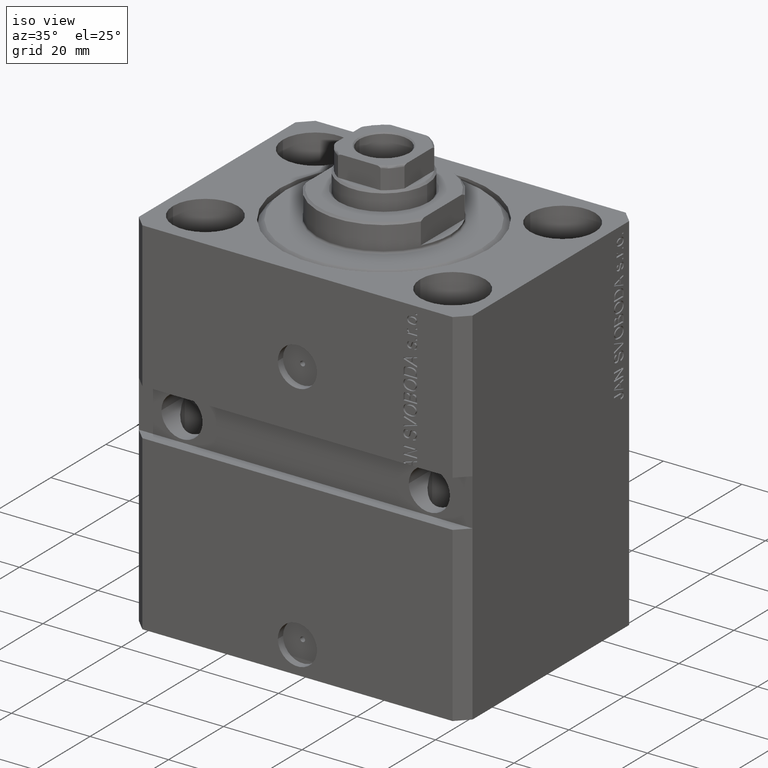
[diagram: clean part render]
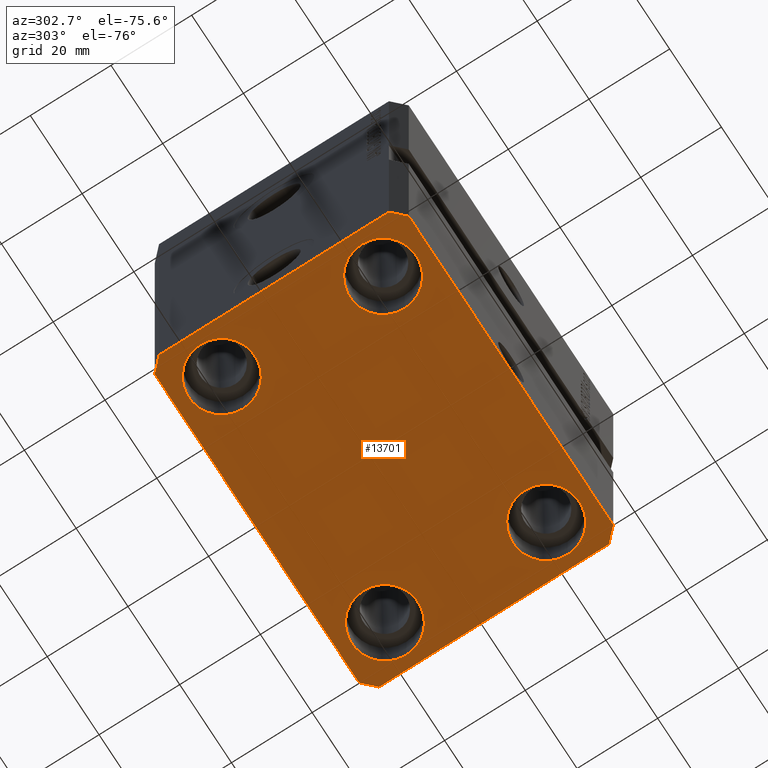
[diagram: tour spotlight — one face highlighted and labeled with its STEP entity id]
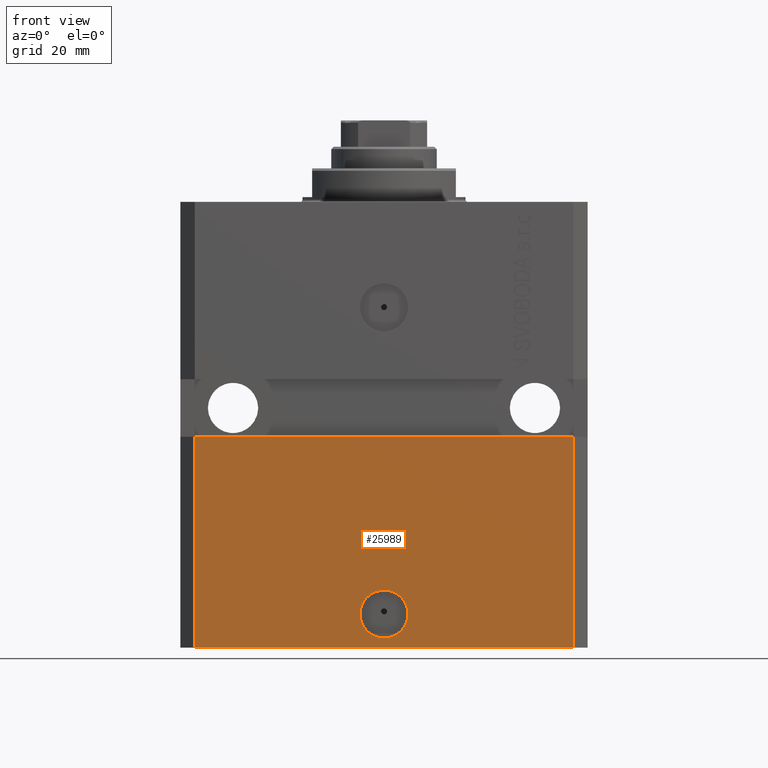
[diagram: tour spotlight — one face highlighted and labeled with its STEP entity id]
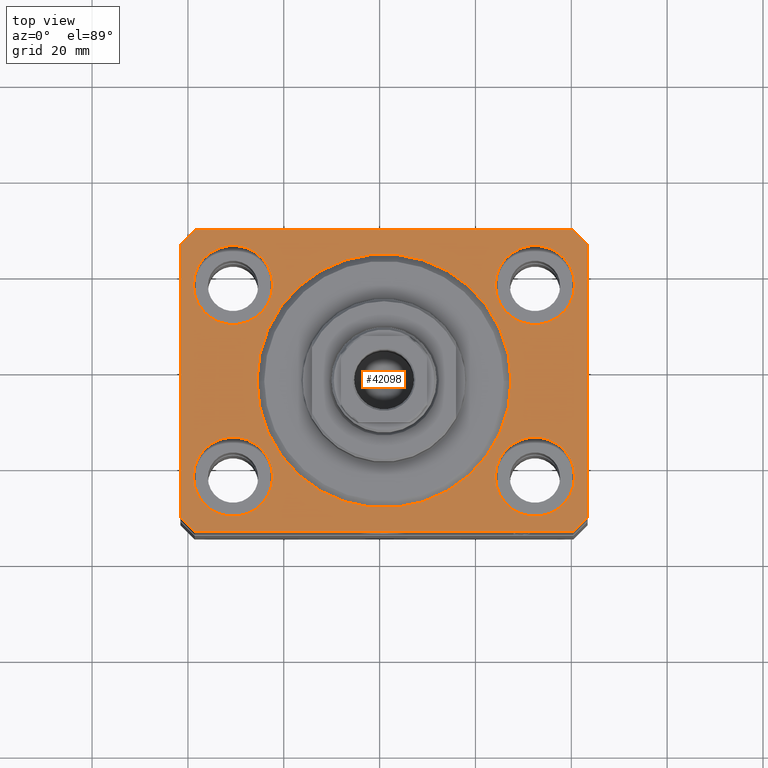
[diagram: tour spotlight — one face highlighted and labeled with its STEP entity id]
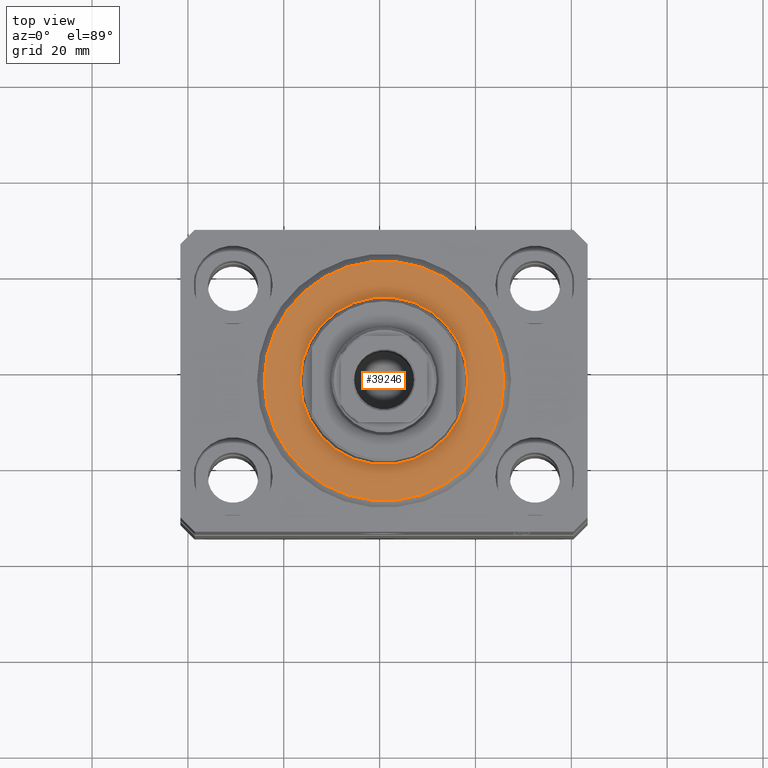
[diagram: tour spotlight — one face highlighted and labeled with its STEP entity id]
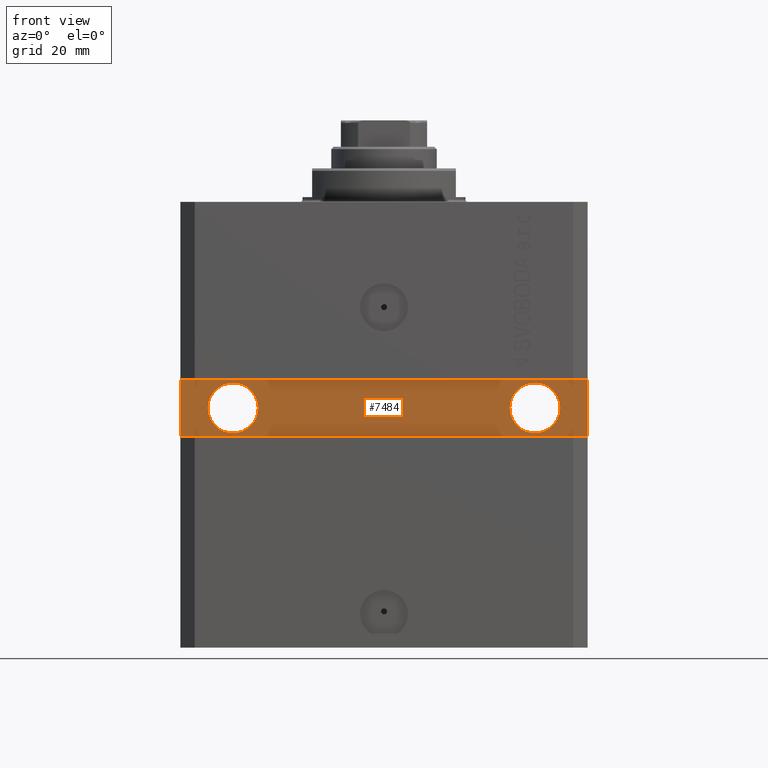
[diagram: tour spotlight — one face highlighted and labeled with its STEP entity id]
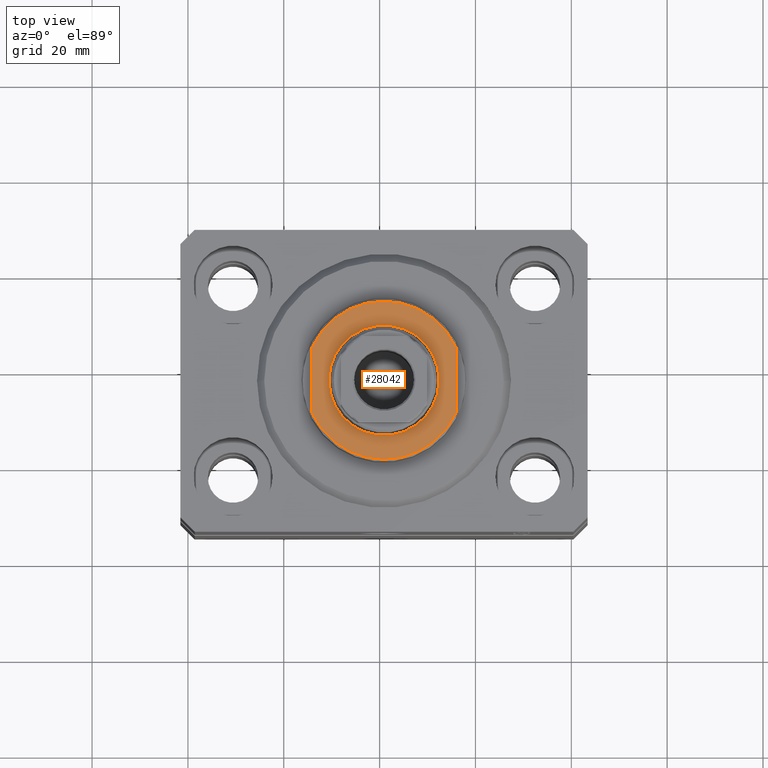
[diagram: tour spotlight — one face highlighted and labeled with its STEP entity id]
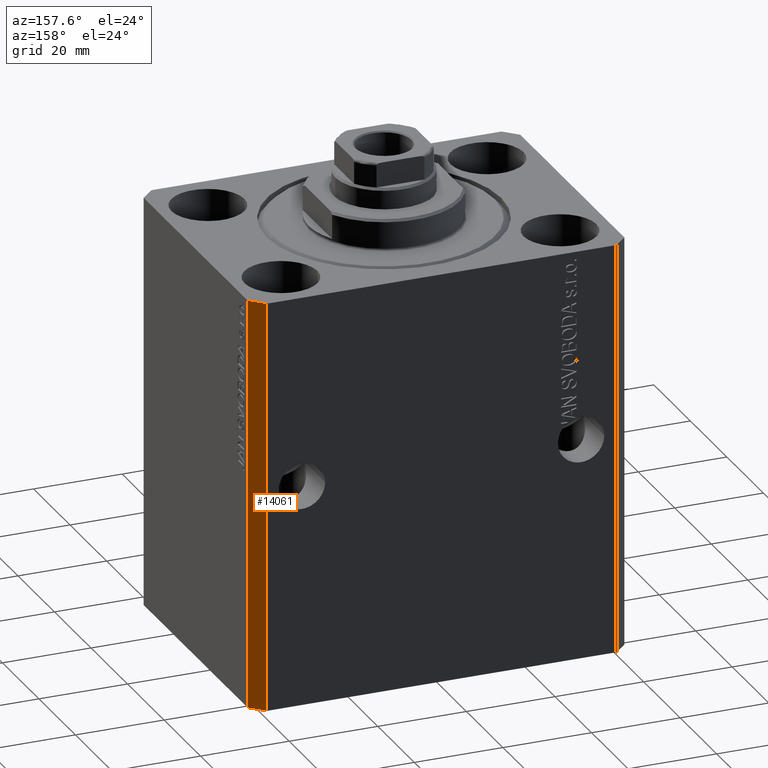
[diagram: tour spotlight — one face highlighted and labeled with its STEP entity id]
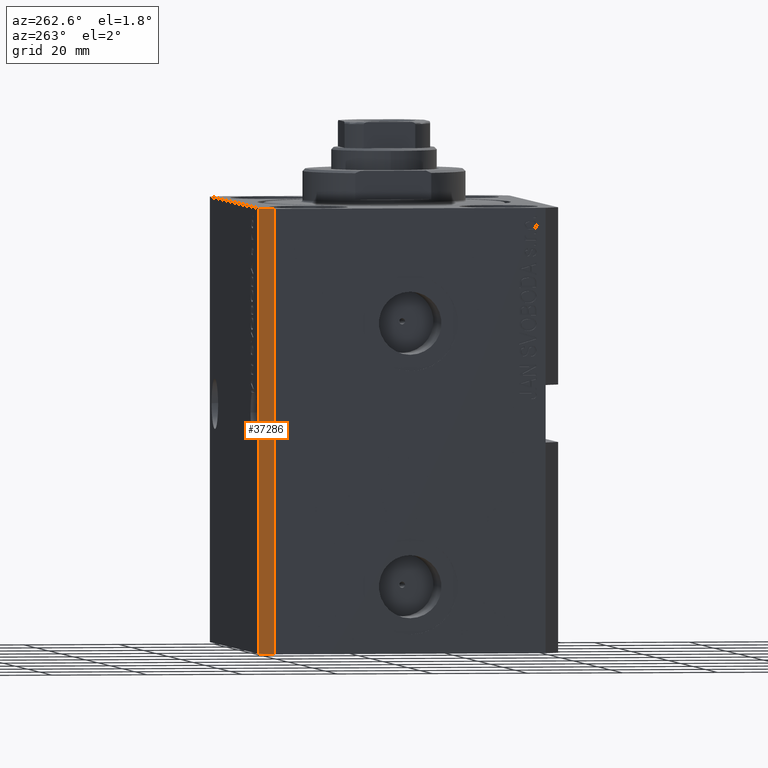
[diagram: tour spotlight — one face highlighted and labeled with its STEP entity id]
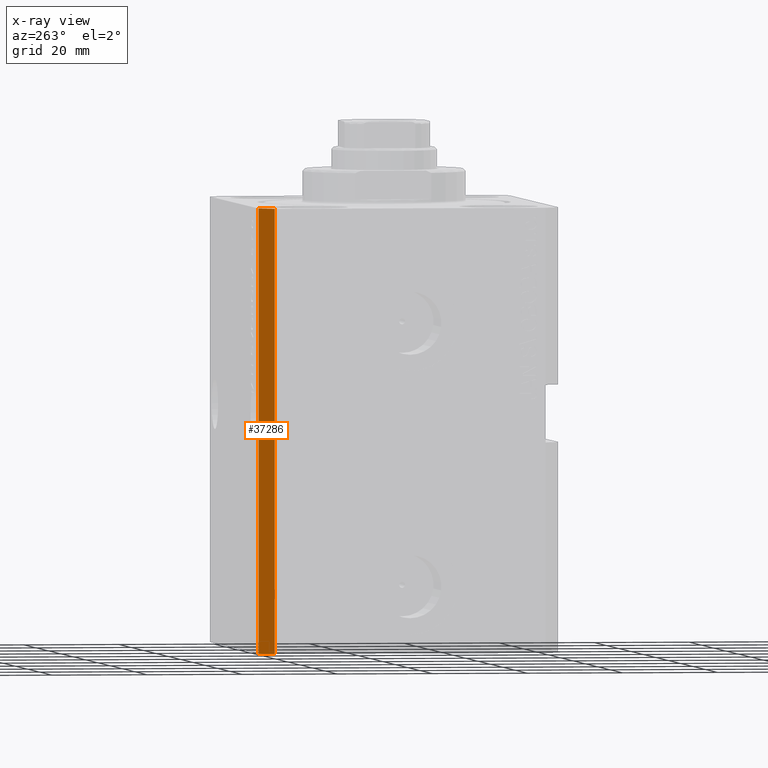
[diagram: x-ray of the same camera — body ghosted, this tour face saturated]
A machine part: a face-by-face anatomy tour. The part has 917 B-rep faces; the first image is the clean iso view, then the 8 largest visible faces are spotlighted one at a time (largest first), each with its STEP entity span.

Face 1 — auxiliary view, entity #13701. In plain terms, the highlighted planar face has unit normal (0, 0, 1).
Definition (entity closure, byte-faithful):
#170 = CARTESIAN_POINT ( 'NONE',  ( 31.50000000000000000, -20.00000000000000000, -93.00000000000000000 ) ) ;
#281 = VECTOR ( 'NONE', #22798, 1000.000000000000000 ) ;
#588 = DIRECTION ( 'NONE',  ( 8.886653596232072440E-15, 1.000000000000000000, 0.000000000000000000 ) ) ;
#613 = CARTESIAN_POINT ( 'NONE',  ( 31.50000000000000000, 20.00000000000001066, -93.00000000000000000 ) ) ;
#1024 = EDGE_CURVE ( 'NONE', #42328, #25160, #41463, .T. ) ;
#1270 = PLANE ( 'NONE',  #35520 ) ;
#1571 = AXIS2_PLACEMENT_3D ( 'NONE', #33351, #37434, #6375 ) ;
#2385 = EDGE_CURVE ( 'NONE', #22477, #44436, #14909, .T. ) ;
#2394 = DIRECTION ( 'NONE',  ( 1.000000000000000000, 0.000000000000000000, 0.000000000000000000 ) ) ;
#2441 = EDGE_CURVE ( 'NONE', #16434, #23155, #9670, .T. ) ;
#2725 = DIRECTION ( 'NONE',  ( -0.000000000000000000, -0.000000000000000000, 1.000000000000000000 ) ) ;
#3092 = CIRCLE ( 'NONE', #40751, 8.250000000000000000 ) ;
#3968 = ORIENTED_EDGE ( 'NONE', *, *, #4119, .T. ) ;
#4104 = CARTESIAN_POINT ( 'NONE',  ( -23.25000000000000000, 20.00000000000000000, -93.00000000000000000 ) ) ;
#4119 = EDGE_CURVE ( 'NONE', #18093, #22908, #38669, .T. ) ;
#4164 = VERTEX_POINT ( 'NONE', #25248 ) ;
#4266 = ORIENTED_EDGE ( 'NONE', *, *, #9977, .F. ) ;
#4426 = VECTOR ( 'NONE', #44765, 1000.000000000000114 ) ;
#5800 = CARTESIAN_POINT ( 'NONE',  ( 31.50000000000000000, 20.00000000000001066, -93.00000000000000000 ) ) ;
#5870 = VECTOR ( 'NONE', #31104, 1000.000000000000000 ) ;
#6375 = DIRECTION ( 'NONE',  ( 1.000000000000000000, 0.000000000000000000, 0.000000000000000000 ) ) ;
#6612 = DIRECTION ( 'NONE',  ( -0.7071067811865471286, -0.7071067811865479058, 0.000000000000000000 ) ) ;
#6866 = AXIS2_PLACEMENT_3D ( 'NONE', #170, #20796, #14236 ) ;
#8290 = FACE_BOUND ( 'NONE', #18082, .T. ) ;
#8544 = CARTESIAN_POINT ( 'NONE',  ( 39.50000000000056843, 31.50000000000000000, -93.00000000000000000 ) ) ;
#8855 = CARTESIAN_POINT ( 'NONE',  ( 39.74999999999999289, -20.00000000000000000, -93.00000000000000000 ) ) ;
#9670 = CIRCLE ( 'NONE', #14768, 8.249999999999992895 ) ;
#9833 = ORIENTED_EDGE ( 'NONE', *, *, #41307, .F. ) ;
#9904 = VECTOR ( 'NONE', #31666, 1000.000000000000000 ) ;
#9977 = EDGE_CURVE ( 'NONE', #22693, #42627, #18054, .T. ) ;
#10028 = LINE ( 'NONE', #37671, #42762 ) ;
#10035 = EDGE_CURVE ( 'NONE', #23155, #16434, #35235, .T. ) ;
#10810 = CARTESIAN_POINT ( 'NONE',  ( -42.50000000000000000, -28.50000000000000000, -93.00000000000000000 ) ) ;
#11607 = EDGE_LOOP ( 'NONE', ( #35541, #29053 ) ) ;
#11638 = DIRECTION ( 'NONE',  ( -0.000000000000000000, -0.000000000000000000, 1.000000000000000000 ) ) ;
#11837 = ORIENTED_EDGE ( 'NONE', *, *, #29132, .T. ) ;
#11870 = DIRECTION ( 'NONE',  ( -0.000000000000000000, -0.000000000000000000, 1.000000000000000000 ) ) ;
#11908 = FACE_BOUND ( 'NONE', #26758, .T. ) ;
#12094 = DIRECTION ( 'NONE',  ( 1.000000000000000000, 0.000000000000000000, 0.000000000000000000 ) ) ;
#12442 = CARTESIAN_POINT ( 'NONE',  ( -42.50000000000000000, 28.50000000000000000, -93.00000000000000000 ) ) ;
#12707 = EDGE_CURVE ( 'NONE', #41314, #41465, #39327, .T. ) ;
#12848 = EDGE_LOOP ( 'NONE', ( #25208, #11837 ) ) ;
#12986 = CARTESIAN_POINT ( 'NONE',  ( -39.50000000000000711, -31.50000000000000000, -93.00000000000000000 ) ) ;
#13701 = ADVANCED_FACE ( 'NONE', ( #8290, #15987, #28907, #11908, #26390 ), #1270, .F. ) ;
#14123 = EDGE_CURVE ( 'NONE', #44436, #21702, #10028, .T. ) ;
#14236 = DIRECTION ( 'NONE',  ( 1.000000000000000000, 0.000000000000000000, 0.000000000000000000 ) ) ;
#14444 = DIRECTION ( 'NONE',  ( 1.000000000000000000, 0.000000000000000000, 0.000000000000000000 ) ) ;
#14614 = CARTESIAN_POINT ( 'NONE',  ( -31.50000000000000000, 20.00000000000000000, -93.00000000000000000 ) ) ;
#14768 = AXIS2_PLACEMENT_3D ( 'NONE', #5800, #19611, #2394 ) ;
#14909 = LINE ( 'NONE', #8544, #281 ) ;
#15324 = DIRECTION ( 'NONE',  ( 1.000000000000000000, 0.000000000000000000, -0.000000000000000000 ) ) ;
#15566 = EDGE_CURVE ( 'NONE', #44733, #22477, #41345, .T. ) ;
#15699 = AXIS2_PLACEMENT_3D ( 'NONE', #613, #25294, #14444 ) ;
#15744 = EDGE_CURVE ( 'NONE', #42627, #41314, #44710, .T. ) ;
#15767 = DIRECTION ( 'NONE',  ( 0.7071067811865483499, 0.7071067811865466846, 0.000000000000000000 ) ) ;
#15987 = FACE_BOUND ( 'NONE', #12848, .T. ) ;
#16434 = VERTEX_POINT ( 'NONE', #27016 ) ;
#16525 = ORIENTED_EDGE ( 'NONE', *, *, #12707, .F. ) ;
#16734 = ORIENTED_EDGE ( 'NONE', *, *, #40797, .F. ) ;
#16772 = DIRECTION ( 'NONE',  ( 1.000000000000000000, 0.000000000000000000, 0.000000000000000000 ) ) ;
#17122 = EDGE_CURVE ( 'NONE', #4164, #44405, #21104, .T. ) ;
#17701 = CARTESIAN_POINT ( 'NONE',  ( 42.50000000000051870, 28.49999999999995381, -93.00000000000000000 ) ) ;
#17807 = CARTESIAN_POINT ( 'NONE',  ( -42.50000000000000000, -28.50000000000000000, -93.00000000000000000 ) ) ;
#17864 = ORIENTED_EDGE ( 'NONE', *, *, #15566, .F. ) ;
#18054 = LINE ( 'NONE', #10810, #9904 ) ;
#18082 = EDGE_LOOP ( 'NONE', ( #40262, #37017 ) ) ;
#18093 = VERTEX_POINT ( 'NONE', #4104 ) ;
#18637 = CARTESIAN_POINT ( 'NONE',  ( 23.25000000000000355, 20.00000000000001066, -93.00000000000000000 ) ) ;
#19611 = DIRECTION ( 'NONE',  ( -0.000000000000000000, -0.000000000000000000, 1.000000000000000000 ) ) ;
#20161 = EDGE_CURVE ( 'NONE', #44405, #4164, #3092, .T. ) ;
#20796 = DIRECTION ( 'NONE',  ( -0.000000000000000000, -0.000000000000000000, 1.000000000000000000 ) ) ;
#21104 = CIRCLE ( 'NONE', #1571, 8.250000000000000000 ) ;
#21702 = VERTEX_POINT ( 'NONE', #38011 ) ;
#21862 = CARTESIAN_POINT ( 'NONE',  ( 42.50000000000000711, -28.50000000000000355, -93.00000000000000000 ) ) ;
#22477 = VERTEX_POINT ( 'NONE', #35565 ) ;
#22693 = VERTEX_POINT ( 'NONE', #17807 ) ;
#22798 = DIRECTION ( 'NONE',  ( -1.000000000000000000, 0.000000000000000000, 0.000000000000000000 ) ) ;
#22908 = VERTEX_POINT ( 'NONE', #44067 ) ;
#23014 = VECTOR ( 'NONE', #588, 1000.000000000000000 ) ;
#23155 = VERTEX_POINT ( 'NONE', #18637 ) ;
#23341 = AXIS2_PLACEMENT_3D ( 'NONE', #40794, #2725, #44195 ) ;
#23999 = DIRECTION ( 'NONE',  ( -0.000000000000000000, -0.000000000000000000, 1.000000000000000000 ) ) ;
#25160 = VERTEX_POINT ( 'NONE', #8855 ) ;
#25208 = ORIENTED_EDGE ( 'NONE', *, *, #1024, .T. ) ;
#25245 = EDGE_CURVE ( 'NONE', #22908, #18093, #34281, .T. ) ;
#25248 = CARTESIAN_POINT ( 'NONE',  ( -39.75000000000000000, -20.00000000000000000, -93.00000000000000000 ) ) ;
#25294 = DIRECTION ( 'NONE',  ( -0.000000000000000000, -0.000000000000000000, 1.000000000000000000 ) ) ;
#26258 = DIRECTION ( 'NONE',  ( 0.000000000000000000, -1.000000000000000000, 0.000000000000000000 ) ) ;
#26390 = FACE_OUTER_BOUND ( 'NONE', #42062, .T. ) ;
#26758 = EDGE_LOOP ( 'NONE', ( #30547, #3968 ) ) ;
#27016 = CARTESIAN_POINT ( 'NONE',  ( 39.74999999999999289, 20.00000000000001066, -93.00000000000000000 ) ) ;
#27857 = CIRCLE ( 'NONE', #6866, 8.249999999999992895 ) ;
#28666 = CARTESIAN_POINT ( 'NONE',  ( 42.50000000000000711, -28.50000000000000355, -93.00000000000000000 ) ) ;
#28907 = FACE_BOUND ( 'NONE', #11607, .T. ) ;
#29053 = ORIENTED_EDGE ( 'NONE', *, *, #2441, .T. ) ;
#29132 = EDGE_CURVE ( 'NONE', #25160, #42328, #27857, .T. ) ;
#29504 = ORIENTED_EDGE ( 'NONE', *, *, #2385, .F. ) ;
#29799 = DIRECTION ( 'NONE',  ( 0.000000000000000000, 0.000000000000000000, 1.000000000000000000 ) ) ;
#30547 = ORIENTED_EDGE ( 'NONE', *, *, #25245, .T. ) ;
#30711 = CARTESIAN_POINT ( 'NONE',  ( 42.50000000000051870, 28.49999999999995381, -93.00000000000000000 ) ) ;
#31104 = DIRECTION ( 'NONE',  ( 1.000000000000000000, 0.000000000000000000, 0.000000000000000000 ) ) ;
#31406 = CARTESIAN_POINT ( 'NONE',  ( 39.50000000000000711, -31.50000000000000000, -93.00000000000000000 ) ) ;
#31666 = DIRECTION ( 'NONE',  ( 0.7071067811865471286, -0.7071067811865479058, 0.000000000000000000 ) ) ;
#31834 = DIRECTION ( 'NONE',  ( 1.000000000000000000, 0.000000000000000000, 0.000000000000000000 ) ) ;
#32043 = CARTESIAN_POINT ( 'NONE',  ( -31.50000000000000000, -20.00000000000000000, -93.00000000000000000 ) ) ;
#32766 = CARTESIAN_POINT ( 'NONE',  ( 0.000000000000000000, 0.000000000000000000, -93.00000000000000000 ) ) ;
#32876 = AXIS2_PLACEMENT_3D ( 'NONE', #14614, #11870, #31834 ) ;
#33202 = CARTESIAN_POINT ( 'NONE',  ( 39.50000000000000711, -31.50000000000000000, -93.00000000000000000 ) ) ;
#33351 = CARTESIAN_POINT ( 'NONE',  ( -31.50000000000000000, -20.00000000000000000, -93.00000000000000000 ) ) ;
#34025 = VECTOR ( 'NONE', #15767, 1000.000000000000000 ) ;
#34281 = CIRCLE ( 'NONE', #38627, 8.250000000000000000 ) ;
#34435 = CARTESIAN_POINT ( 'NONE',  ( -31.50000000000000000, 20.00000000000000000, -93.00000000000000000 ) ) ;
#34553 = CARTESIAN_POINT ( 'NONE',  ( -39.50000000000000711, 31.50000000000000000, -93.00000000000000000 ) ) ;
#35029 = LINE ( 'NONE', #28666, #23014 ) ;
#35157 = ORIENTED_EDGE ( 'NONE', *, *, #14123, .F. ) ;
#35235 = CIRCLE ( 'NONE', #15699, 8.249999999999992895 ) ;
#35249 = ORIENTED_EDGE ( 'NONE', *, *, #15744, .F. ) ;
#35520 = AXIS2_PLACEMENT_3D ( 'NONE', #32766, #29799, #15324 ) ;
#35541 = ORIENTED_EDGE ( 'NONE', *, *, #10035, .T. ) ;
#35565 = CARTESIAN_POINT ( 'NONE',  ( 39.50000000000056843, 31.50000000000000000, -93.00000000000000000 ) ) ;
#37017 = ORIENTED_EDGE ( 'NONE', *, *, #20161, .T. ) ;
#37434 = DIRECTION ( 'NONE',  ( -0.000000000000000000, -0.000000000000000000, 1.000000000000000000 ) ) ;
#37517 = VECTOR ( 'NONE', #26258, 1000.000000000000000 ) ;
#37671 = CARTESIAN_POINT ( 'NONE',  ( -39.50000000000000711, 31.50000000000000000, -93.00000000000000000 ) ) ;
#38011 = CARTESIAN_POINT ( 'NONE',  ( -42.50000000000000000, 28.50000000000000000, -93.00000000000000000 ) ) ;
#38627 = AXIS2_PLACEMENT_3D ( 'NONE', #34435, #23999, #16772 ) ;
#38669 = CIRCLE ( 'NONE', #32876, 8.250000000000000000 ) ;
#39327 = LINE ( 'NONE', #33202, #34025 ) ;
#40262 = ORIENTED_EDGE ( 'NONE', *, *, #17122, .T. ) ;
#40751 = AXIS2_PLACEMENT_3D ( 'NONE', #32043, #11638, #12094 ) ;
#40794 = CARTESIAN_POINT ( 'NONE',  ( 31.50000000000000000, -20.00000000000000000, -93.00000000000000000 ) ) ;
#40797 = EDGE_CURVE ( 'NONE', #21702, #22693, #43497, .T. ) ;
#41208 = CARTESIAN_POINT ( 'NONE',  ( 23.25000000000000355, -20.00000000000000000, -93.00000000000000000 ) ) ;
#41307 = EDGE_CURVE ( 'NONE', #41465, #44733, #35029, .T. ) ;
#41314 = VERTEX_POINT ( 'NONE', #31406 ) ;
#41345 = LINE ( 'NONE', #30711, #4426 ) ;
#41463 = CIRCLE ( 'NONE', #23341, 8.249999999999992895 ) ;
#41465 = VERTEX_POINT ( 'NONE', #21862 ) ;
#41775 = CARTESIAN_POINT ( 'NONE',  ( -39.50000000000000711, -31.50000000000000000, -93.00000000000000000 ) ) ;
#42062 = EDGE_LOOP ( 'NONE', ( #29504, #17864, #9833, #16525, #35249, #4266, #16734, #35157 ) ) ;
#42328 = VERTEX_POINT ( 'NONE', #41208 ) ;
#42627 = VERTEX_POINT ( 'NONE', #41775 ) ;
#42762 = VECTOR ( 'NONE', #6612, 1000.000000000000000 ) ;
#43497 = LINE ( 'NONE', #12442, #37517 ) ;
#44067 = CARTESIAN_POINT ( 'NONE',  ( -39.75000000000000000, 20.00000000000000000, -93.00000000000000000 ) ) ;
#44195 = DIRECTION ( 'NONE',  ( 1.000000000000000000, 0.000000000000000000, 0.000000000000000000 ) ) ;
#44405 = VERTEX_POINT ( 'NONE', #44527 ) ;
#44436 = VERTEX_POINT ( 'NONE', #34553 ) ;
#44527 = CARTESIAN_POINT ( 'NONE',  ( -23.25000000000000000, -20.00000000000000000, -93.00000000000000000 ) ) ;
#44710 = LINE ( 'NONE', #12986, #5870 ) ;
#44733 = VERTEX_POINT ( 'NONE', #17701 ) ;
#44765 = DIRECTION ( 'NONE',  ( -0.7071067811865356934, 0.7071067811865594521, 0.000000000000000000 ) ) ;

Face 2 — front view, entity #25989. In plain terms, the highlighted planar face has unit normal (0, -1, 0).
Definition (entity closure, byte-faithful):
#949 = CARTESIAN_POINT ( 'NONE',  ( -5.000000000000006217, -31.50000000000000000, -86.00000000000000000 ) ) ;
#2030 = ORIENTED_EDGE ( 'NONE', *, *, #8521, .F. ) ;
#2099 = VERTEX_POINT ( 'NONE', #949 ) ;
#2576 = VECTOR ( 'NONE', #37048, 1000.000000000000000 ) ;
#3597 = ORIENTED_EDGE ( 'NONE', *, *, #12847, .F. ) ;
#3644 = CARTESIAN_POINT ( 'NONE',  ( 39.50000000000001421, -31.49999999999999289, -48.99999999999999289 ) ) ;
#5870 = VECTOR ( 'NONE', #31104, 1000.000000000000000 ) ;
#6225 = CARTESIAN_POINT ( 'NONE',  ( 39.50000000000000711, -31.50000000000000000, -93.00000000000000000 ) ) ;
#6755 = CARTESIAN_POINT ( 'NONE',  ( -39.50000000000000711, -31.50000000000000000, -93.00000000000000000 ) ) ;
#6953 = EDGE_CURVE ( 'NONE', #41314, #43616, #36837, .T. ) ;
#6983 = DIRECTION ( 'NONE',  ( 0.000000000000000000, -0.000000000000000000, -1.000000000000000000 ) ) ;
#7168 = ORIENTED_EDGE ( 'NONE', *, *, #15744, .T. ) ;
#7684 = CARTESIAN_POINT ( 'NONE',  ( 0.000000000000000000, -31.50000000000000000, -86.00000000000000000 ) ) ;
#7766 = ORIENTED_EDGE ( 'NONE', *, *, #26797, .F. ) ;
#8521 = EDGE_CURVE ( 'NONE', #42627, #30051, #24461, .T. ) ;
#9673 = CARTESIAN_POINT ( 'NONE',  ( 0.000000000000000000, -31.50000000000000000, -86.00000000000000000 ) ) ;
#10447 = EDGE_CURVE ( 'NONE', #2099, #13059, #15607, .T. ) ;
#10572 = DIRECTION ( 'NONE',  ( 1.000000000000000000, 0.000000000000000000, 0.000000000000000000 ) ) ;
#10990 = EDGE_LOOP ( 'NONE', ( #7766, #28548 ) ) ;
#11406 = CARTESIAN_POINT ( 'NONE',  ( 5.000000000000006217, -31.50000000000000000, -86.00000000000000000 ) ) ;
#11900 = CARTESIAN_POINT ( 'NONE',  ( -42.50000000000000000, -31.50000000000000711, -48.99999999999999289 ) ) ;
#12847 = EDGE_CURVE ( 'NONE', #30051, #43616, #42949, .T. ) ;
#12986 = CARTESIAN_POINT ( 'NONE',  ( -39.50000000000000711, -31.50000000000000000, -93.00000000000000000 ) ) ;
#13059 = VERTEX_POINT ( 'NONE', #11406 ) ;
#14723 = DIRECTION ( 'NONE',  ( 1.000000000000000000, 0.000000000000000000, 0.000000000000000000 ) ) ;
#15584 = CARTESIAN_POINT ( 'NONE',  ( -39.50000000000000000, -31.50000000000000711, -48.99999999999999289 ) ) ;
#15607 = CIRCLE ( 'NONE', #35128, 5.000000000000006217 ) ;
#15744 = EDGE_CURVE ( 'NONE', #42627, #41314, #44710, .T. ) ;
#19678 = ORIENTED_EDGE ( 'NONE', *, *, #6953, .T. ) ;
#20012 = EDGE_LOOP ( 'NONE', ( #3597, #2030, #7168, #19678 ) ) ;
#20571 = DIRECTION ( 'NONE',  ( 0.000000000000000000, -1.000000000000000000, 0.000000000000000000 ) ) ;
#21272 = DIRECTION ( 'NONE',  ( 0.000000000000000000, 0.000000000000000000, 1.000000000000000000 ) ) ;
#24461 = LINE ( 'NONE', #38295, #33734 ) ;
#25989 = ADVANCED_FACE ( 'NONE', ( #34856, #34642 ), #37806, .T. ) ;
#26797 = EDGE_CURVE ( 'NONE', #13059, #2099, #38656, .T. ) ;
#27050 = AXIS2_PLACEMENT_3D ( 'NONE', #6755, #20571, #6983 ) ;
#28548 = ORIENTED_EDGE ( 'NONE', *, *, #10447, .F. ) ;
#30051 = VERTEX_POINT ( 'NONE', #15584 ) ;
#31104 = DIRECTION ( 'NONE',  ( 1.000000000000000000, 0.000000000000000000, 0.000000000000000000 ) ) ;
#31406 = CARTESIAN_POINT ( 'NONE',  ( 39.50000000000000711, -31.50000000000000000, -93.00000000000000000 ) ) ;
#31438 = AXIS2_PLACEMENT_3D ( 'NONE', #9673, #40947, #10572 ) ;
#32608 = DIRECTION ( 'NONE',  ( 1.176083712526788232E-16, -1.000000000000000000, 0.000000000000000000 ) ) ;
#33734 = VECTOR ( 'NONE', #21272, 1000.000000000000000 ) ;
#34642 = FACE_OUTER_BOUND ( 'NONE', #20012, .T. ) ;
#34856 = FACE_BOUND ( 'NONE', #10990, .T. ) ;
#35128 = AXIS2_PLACEMENT_3D ( 'NONE', #7684, #32608, #14723 ) ;
#35493 = VECTOR ( 'NONE', #36369, 1000.000000000000000 ) ;
#36369 = DIRECTION ( 'NONE',  ( 1.000000000000000000, 1.632680918566406300E-16, 0.000000000000000000 ) ) ;
#36837 = LINE ( 'NONE', #6225, #2576 ) ;
#37048 = DIRECTION ( 'NONE',  ( 0.000000000000000000, 0.000000000000000000, 1.000000000000000000 ) ) ;
#37806 = PLANE ( 'NONE',  #27050 ) ;
#38295 = CARTESIAN_POINT ( 'NONE',  ( -39.50000000000000711, -31.50000000000000000, -93.00000000000000000 ) ) ;
#38656 = CIRCLE ( 'NONE', #31438, 5.000000000000006217 ) ;
#40947 = DIRECTION ( 'NONE',  ( 1.176083712526788232E-16, -1.000000000000000000, 0.000000000000000000 ) ) ;
#41314 = VERTEX_POINT ( 'NONE', #31406 ) ;
#41775 = CARTESIAN_POINT ( 'NONE',  ( -39.50000000000000711, -31.50000000000000000, -93.00000000000000000 ) ) ;
#42627 = VERTEX_POINT ( 'NONE', #41775 ) ;
#42949 = LINE ( 'NONE', #11900, #35493 ) ;
#43616 = VERTEX_POINT ( 'NONE', #3644 ) ;
#44710 = LINE ( 'NONE', #12986, #5870 ) ;

Face 3 — top view, entity #42098. In plain terms, the highlighted planar face has unit normal (0, 0, 1).
Definition (entity closure, byte-faithful):
#46 = DIRECTION ( 'NONE',  ( 0.000000000000000000, 0.000000000000000000, 1.000000000000000000 ) ) ;
#151 = CIRCLE ( 'NONE', #25471, 26.50000000000000355 ) ;
#169 = ORIENTED_EDGE ( 'NONE', *, *, #21637, .F. ) ;
#179 = VERTEX_POINT ( 'NONE', #10967 ) ;
#417 = CARTESIAN_POINT ( 'NONE',  ( 39.50000000000000711, -31.50000000000000000, 0.000000000000000000 ) ) ;
#1272 = DIRECTION ( 'NONE',  ( -0.7071067811865356934, 0.7071067811865594521, 0.000000000000000000 ) ) ;
#1730 = VECTOR ( 'NONE', #29916, 1000.000000000000000 ) ;
#2009 = DIRECTION ( 'NONE',  ( 0.000000000000000000, 0.000000000000000000, 1.000000000000000000 ) ) ;
#2179 = ORIENTED_EDGE ( 'NONE', *, *, #25215, .T. ) ;
#2975 = ORIENTED_EDGE ( 'NONE', *, *, #41399, .F. ) ;
#3259 = CIRCLE ( 'NONE', #29343, 8.250000000000000000 ) ;
#3329 = CARTESIAN_POINT ( 'NONE',  ( 42.50000000000000711, -28.50000000000000355, 0.000000000000000000 ) ) ;
#3709 = AXIS2_PLACEMENT_3D ( 'NONE', #13664, #46, #26787 ) ;
#3954 = CARTESIAN_POINT ( 'NONE',  ( -31.50000000000000000, -20.00000000000000000, 0.000000000000000000 ) ) ;
#4088 = VERTEX_POINT ( 'NONE', #16899 ) ;
#4518 = AXIS2_PLACEMENT_3D ( 'NONE', #3954, #14615, #29087 ) ;
#4641 = DIRECTION ( 'NONE',  ( 1.000000000000000000, 0.000000000000000000, 0.000000000000000000 ) ) ;
#4645 = VERTEX_POINT ( 'NONE', #6791 ) ;
#4670 = CARTESIAN_POINT ( 'NONE',  ( 42.50000000000051870, 28.49999999999995381, 0.000000000000000000 ) ) ;
#5038 = VERTEX_POINT ( 'NONE', #15956 ) ;
#5068 = CARTESIAN_POINT ( 'NONE',  ( -39.75000000000000000, -20.00000000000000000, 0.000000000000000000 ) ) ;
#5244 = CARTESIAN_POINT ( 'NONE',  ( -23.25000000000000000, -20.00000000000000000, 0.000000000000000000 ) ) ;
#5258 = VECTOR ( 'NONE', #37034, 1000.000000000000000 ) ;
#5547 = CIRCLE ( 'NONE', #12093, 8.250000000000000000 ) ;
#5891 = LINE ( 'NONE', #36062, #1730 ) ;
#6101 = EDGE_CURVE ( 'NONE', #11454, #15654, #3259, .T. ) ;
#6130 = CARTESIAN_POINT ( 'NONE',  ( 39.50000000000056843, 31.50000000000000000, 0.000000000000000000 ) ) ;
#6791 = CARTESIAN_POINT ( 'NONE',  ( 39.74999999999999289, 20.00000000000001066, 0.000000000000000000 ) ) ;
#6875 = LINE ( 'NONE', #10286, #5258 ) ;
#7420 = VECTOR ( 'NONE', #14479, 1000.000000000000000 ) ;
#7537 = CARTESIAN_POINT ( 'NONE',  ( 39.74999999999999289, -20.00000000000000000, 0.000000000000000000 ) ) ;
#7667 = DIRECTION ( 'NONE',  ( 0.7071067811865471286, -0.7071067811865479058, 0.000000000000000000 ) ) ;
#7788 = ORIENTED_EDGE ( 'NONE', *, *, #6101, .F. ) ;
#8156 = EDGE_LOOP ( 'NONE', ( #2975, #24867 ) ) ;
#9160 = DIRECTION ( 'NONE',  ( 0.000000000000000000, 0.000000000000000000, 1.000000000000000000 ) ) ;
#9384 = ORIENTED_EDGE ( 'NONE', *, *, #12653, .F. ) ;
#9551 = CARTESIAN_POINT ( 'NONE',  ( -39.50000000000000711, -31.50000000000000000, 0.000000000000000000 ) ) ;
#9940 = VERTEX_POINT ( 'NONE', #3329 ) ;
#10173 = CARTESIAN_POINT ( 'NONE',  ( 23.25000000000000355, -20.00000000000000000, 0.000000000000000000 ) ) ;
#10227 = VERTEX_POINT ( 'NONE', #32889 ) ;
#10241 = LINE ( 'NONE', #30645, #35703 ) ;
#10286 = CARTESIAN_POINT ( 'NONE',  ( 39.50000000000056843, 31.50000000000000000, 0.000000000000000000 ) ) ;
#10291 = DIRECTION ( 'NONE',  ( 0.000000000000000000, 0.000000000000000000, 1.000000000000000000 ) ) ;
#10680 = CARTESIAN_POINT ( 'NONE',  ( -23.25000000000000000, 20.00000000000000000, 0.000000000000000000 ) ) ;
#10737 = CARTESIAN_POINT ( 'NONE',  ( -31.50000000000000000, -20.00000000000000000, 0.000000000000000000 ) ) ;
#10967 = CARTESIAN_POINT ( 'NONE',  ( 42.50000000000051870, 28.49999999999995381, 0.000000000000000000 ) ) ;
#11109 = EDGE_LOOP ( 'NONE', ( #27700, #12965, #22022, #20180, #27704, #33568, #2179, #39260 ) ) ;
#11176 = DIRECTION ( 'NONE',  ( 1.000000000000000000, 0.000000000000000000, 0.000000000000000000 ) ) ;
#11454 = VERTEX_POINT ( 'NONE', #5244 ) ;
#11558 = ORIENTED_EDGE ( 'NONE', *, *, #35432, .F. ) ;
#11674 = CIRCLE ( 'NONE', #3709, 26.50000000000000355 ) ;
#11689 = LINE ( 'NONE', #4670, #43509 ) ;
#11881 = CARTESIAN_POINT ( 'NONE',  ( 31.50000000000000000, -20.00000000000000000, 0.000000000000000000 ) ) ;
#11974 = CARTESIAN_POINT ( 'NONE',  ( 31.50000000000000000, 20.00000000000001066, 0.000000000000000000 ) ) ;
#12093 = AXIS2_PLACEMENT_3D ( 'NONE', #20772, #38456, #34609 ) ;
#12128 = CARTESIAN_POINT ( 'NONE',  ( 31.50000000000000000, 20.00000000000001066, 0.000000000000000000 ) ) ;
#12321 = CIRCLE ( 'NONE', #20275, 8.249999999999992895 ) ;
#12653 = EDGE_CURVE ( 'NONE', #42612, #23596, #12321, .T. ) ;
#12732 = DIRECTION ( 'NONE',  ( 1.000000000000000000, 0.000000000000000000, 0.000000000000000000 ) ) ;
#12965 = ORIENTED_EDGE ( 'NONE', *, *, #24213, .T. ) ;
#13624 = LINE ( 'NONE', #27423, #35997 ) ;
#13664 = CARTESIAN_POINT ( 'NONE',  ( 0.000000000000000000, 0.000000000000000000, 0.000000000000000000 ) ) ;
#14195 = AXIS2_PLACEMENT_3D ( 'NONE', #11881, #9160, #4641 ) ;
#14351 = VERTEX_POINT ( 'NONE', #24648 ) ;
#14479 = DIRECTION ( 'NONE',  ( 0.7071067811865483499, 0.7071067811865466846, 0.000000000000000000 ) ) ;
#14517 = CARTESIAN_POINT ( 'NONE',  ( 0.000000000000000000, 0.000000000000000000, 0.000000000000000000 ) ) ;
#14615 = DIRECTION ( 'NONE',  ( 0.000000000000000000, 0.000000000000000000, 1.000000000000000000 ) ) ;
#14670 = EDGE_CURVE ( 'NONE', #179, #34817, #11689, .T. ) ;
#15021 = VECTOR ( 'NONE', #7667, 1000.000000000000000 ) ;
#15654 = VERTEX_POINT ( 'NONE', #5068 ) ;
#15775 = EDGE_CURVE ( 'NONE', #36183, #10227, #11674, .T. ) ;
#15825 = DIRECTION ( 'NONE',  ( 0.000000000000000000, 0.000000000000000000, 1.000000000000000000 ) ) ;
#15835 = DIRECTION ( 'NONE',  ( 1.000000000000000000, 0.000000000000000000, 0.000000000000000000 ) ) ;
#15956 = CARTESIAN_POINT ( 'NONE',  ( -42.50000000000000000, -28.50000000000000000, 0.000000000000000000 ) ) ;
#16899 = CARTESIAN_POINT ( 'NONE',  ( -39.50000000000000711, 31.50000000000000000, 0.000000000000000000 ) ) ;
#17110 = VECTOR ( 'NONE', #12732, 1000.000000000000000 ) ;
#18129 = FACE_BOUND ( 'NONE', #28653, .T. ) ;
#19003 = AXIS2_PLACEMENT_3D ( 'NONE', #11974, #39843, #15835 ) ;
#19355 = EDGE_CURVE ( 'NONE', #14351, #4645, #21166, .T. ) ;
#19391 = CIRCLE ( 'NONE', #28087, 8.249999999999992895 ) ;
#19479 = EDGE_LOOP ( 'NONE', ( #21305, #31680 ) ) ;
#20180 = ORIENTED_EDGE ( 'NONE', *, *, #43787, .T. ) ;
#20275 = AXIS2_PLACEMENT_3D ( 'NONE', #37985, #28448, #24827 ) ;
#20772 = CARTESIAN_POINT ( 'NONE',  ( -31.50000000000000000, 20.00000000000000000, 0.000000000000000000 ) ) ;
#21166 = CIRCLE ( 'NONE', #19003, 8.249999999999992895 ) ;
#21305 = ORIENTED_EDGE ( 'NONE', *, *, #38323, .F. ) ;
#21637 = EDGE_CURVE ( 'NONE', #10227, #36183, #151, .T. ) ;
#21968 = FACE_BOUND ( 'NONE', #37744, .T. ) ;
#22022 = ORIENTED_EDGE ( 'NONE', *, *, #36023, .T. ) ;
#22170 = EDGE_CURVE ( 'NONE', #15654, #11454, #38521, .T. ) ;
#22193 = PLANE ( 'NONE',  #28832 ) ;
#22881 = LINE ( 'NONE', #36711, #15021 ) ;
#22965 = EDGE_CURVE ( 'NONE', #34817, #4088, #6875, .T. ) ;
#23596 = VERTEX_POINT ( 'NONE', #10173 ) ;
#23727 = EDGE_CURVE ( 'NONE', #34224, #9940, #34650, .T. ) ;
#23849 = EDGE_CURVE ( 'NONE', #26031, #43606, #29875, .T. ) ;
#24021 = DIRECTION ( 'NONE',  ( 0.000000000000000000, -1.000000000000000000, 0.000000000000000000 ) ) ;
#24213 = EDGE_CURVE ( 'NONE', #4088, #35980, #10241, .T. ) ;
#24648 = CARTESIAN_POINT ( 'NONE',  ( 23.25000000000000355, 20.00000000000001066, 0.000000000000000000 ) ) ;
#24827 = DIRECTION ( 'NONE',  ( 1.000000000000000000, 0.000000000000000000, 0.000000000000000000 ) ) ;
#24867 = ORIENTED_EDGE ( 'NONE', *, *, #19355, .F. ) ;
#25115 = DIRECTION ( 'NONE',  ( 1.000000000000000000, 0.000000000000000000, 0.000000000000000000 ) ) ;
#25215 = EDGE_CURVE ( 'NONE', #9940, #179, #5891, .T. ) ;
#25368 = DIRECTION ( 'NONE',  ( 1.000000000000000000, 0.000000000000000000, -0.000000000000000000 ) ) ;
#25471 = AXIS2_PLACEMENT_3D ( 'NONE', #33063, #2009, #43479 ) ;
#25641 = VERTEX_POINT ( 'NONE', #40644 ) ;
#25823 = FACE_BOUND ( 'NONE', #19479, .T. ) ;
#26031 = VERTEX_POINT ( 'NONE', #31461 ) ;
#26787 = DIRECTION ( 'NONE',  ( 1.000000000000000000, 0.000000000000000000, 0.000000000000000000 ) ) ;
#27233 = DIRECTION ( 'NONE',  ( -0.7071067811865471286, -0.7071067811865479058, 0.000000000000000000 ) ) ;
#27423 = CARTESIAN_POINT ( 'NONE',  ( -42.50000000000000000, 28.50000000000000000, 0.000000000000000000 ) ) ;
#27700 = ORIENTED_EDGE ( 'NONE', *, *, #22965, .T. ) ;
#27704 = ORIENTED_EDGE ( 'NONE', *, *, #36687, .T. ) ;
#28087 = AXIS2_PLACEMENT_3D ( 'NONE', #12128, #43172, #32531 ) ;
#28448 = DIRECTION ( 'NONE',  ( 0.000000000000000000, 0.000000000000000000, 1.000000000000000000 ) ) ;
#28653 = EDGE_LOOP ( 'NONE', ( #169, #43163 ) ) ;
#28663 = ORIENTED_EDGE ( 'NONE', *, *, #22170, .F. ) ;
#28832 = AXIS2_PLACEMENT_3D ( 'NONE', #14517, #35361, #25368 ) ;
#29087 = DIRECTION ( 'NONE',  ( 1.000000000000000000, 0.000000000000000000, 0.000000000000000000 ) ) ;
#29343 = AXIS2_PLACEMENT_3D ( 'NONE', #10737, #10291, #11176 ) ;
#29875 = CIRCLE ( 'NONE', #38556, 8.250000000000000000 ) ;
#29916 = DIRECTION ( 'NONE',  ( 8.886653596232072440E-15, 1.000000000000000000, 0.000000000000000000 ) ) ;
#30645 = CARTESIAN_POINT ( 'NONE',  ( -39.50000000000000711, 31.50000000000000000, 0.000000000000000000 ) ) ;
#31461 = CARTESIAN_POINT ( 'NONE',  ( -39.75000000000000000, 20.00000000000000000, 0.000000000000000000 ) ) ;
#31680 = ORIENTED_EDGE ( 'NONE', *, *, #23849, .F. ) ;
#31960 = FACE_OUTER_BOUND ( 'NONE', #11109, .T. ) ;
#32531 = DIRECTION ( 'NONE',  ( 1.000000000000000000, 0.000000000000000000, 0.000000000000000000 ) ) ;
#32889 = CARTESIAN_POINT ( 'NONE',  ( 26.50000000000000355, 0.000000000000000000, 0.000000000000000000 ) ) ;
#33063 = CARTESIAN_POINT ( 'NONE',  ( 0.000000000000000000, 0.000000000000000000, 0.000000000000000000 ) ) ;
#33352 = LINE ( 'NONE', #9551, #17110 ) ;
#33568 = ORIENTED_EDGE ( 'NONE', *, *, #23727, .T. ) ;
#34224 = VERTEX_POINT ( 'NONE', #35066 ) ;
#34609 = DIRECTION ( 'NONE',  ( 1.000000000000000000, 0.000000000000000000, 0.000000000000000000 ) ) ;
#34650 = LINE ( 'NONE', #417, #7420 ) ;
#34817 = VERTEX_POINT ( 'NONE', #6130 ) ;
#35066 = CARTESIAN_POINT ( 'NONE',  ( 39.50000000000000711, -31.50000000000000000, 0.000000000000000000 ) ) ;
#35361 = DIRECTION ( 'NONE',  ( 0.000000000000000000, 0.000000000000000000, 1.000000000000000000 ) ) ;
#35432 = EDGE_CURVE ( 'NONE', #23596, #42612, #41682, .T. ) ;
#35703 = VECTOR ( 'NONE', #27233, 1000.000000000000000 ) ;
#35797 = FACE_BOUND ( 'NONE', #39392, .T. ) ;
#35980 = VERTEX_POINT ( 'NONE', #38310 ) ;
#35997 = VECTOR ( 'NONE', #24021, 1000.000000000000000 ) ;
#36023 = EDGE_CURVE ( 'NONE', #35980, #5038, #13624, .T. ) ;
#36062 = CARTESIAN_POINT ( 'NONE',  ( 42.50000000000000711, -28.50000000000000355, 0.000000000000000000 ) ) ;
#36183 = VERTEX_POINT ( 'NONE', #39104 ) ;
#36431 = CARTESIAN_POINT ( 'NONE',  ( -31.50000000000000000, 20.00000000000000000, 0.000000000000000000 ) ) ;
#36687 = EDGE_CURVE ( 'NONE', #25641, #34224, #33352, .T. ) ;
#36711 = CARTESIAN_POINT ( 'NONE',  ( -42.50000000000000000, -28.50000000000000000, 0.000000000000000000 ) ) ;
#37034 = DIRECTION ( 'NONE',  ( -1.000000000000000000, 0.000000000000000000, 0.000000000000000000 ) ) ;
#37744 = EDGE_LOOP ( 'NONE', ( #7788, #28663 ) ) ;
#37985 = CARTESIAN_POINT ( 'NONE',  ( 31.50000000000000000, -20.00000000000000000, 0.000000000000000000 ) ) ;
#38310 = CARTESIAN_POINT ( 'NONE',  ( -42.50000000000000000, 28.50000000000000000, 0.000000000000000000 ) ) ;
#38323 = EDGE_CURVE ( 'NONE', #43606, #26031, #5547, .T. ) ;
#38456 = DIRECTION ( 'NONE',  ( 0.000000000000000000, 0.000000000000000000, 1.000000000000000000 ) ) ;
#38521 = CIRCLE ( 'NONE', #4518, 8.250000000000000000 ) ;
#38556 = AXIS2_PLACEMENT_3D ( 'NONE', #36431, #15825, #25115 ) ;
#38990 = FACE_BOUND ( 'NONE', #8156, .T. ) ;
#39104 = CARTESIAN_POINT ( 'NONE',  ( -26.50000000000000355, 3.245314017740486554E-15, 0.000000000000000000 ) ) ;
#39260 = ORIENTED_EDGE ( 'NONE', *, *, #14670, .T. ) ;
#39392 = EDGE_LOOP ( 'NONE', ( #9384, #11558 ) ) ;
#39843 = DIRECTION ( 'NONE',  ( 0.000000000000000000, 0.000000000000000000, 1.000000000000000000 ) ) ;
#40644 = CARTESIAN_POINT ( 'NONE',  ( -39.50000000000000711, -31.50000000000000000, 0.000000000000000000 ) ) ;
#41399 = EDGE_CURVE ( 'NONE', #4645, #14351, #19391, .T. ) ;
#41682 = CIRCLE ( 'NONE', #14195, 8.249999999999992895 ) ;
#42098 = ADVANCED_FACE ( 'NONE', ( #21968, #35797, #38990, #25823, #18129, #31960 ), #22193, .T. ) ;
#42612 = VERTEX_POINT ( 'NONE', #7537 ) ;
#43163 = ORIENTED_EDGE ( 'NONE', *, *, #15775, .F. ) ;
#43172 = DIRECTION ( 'NONE',  ( 0.000000000000000000, 0.000000000000000000, 1.000000000000000000 ) ) ;
#43479 = DIRECTION ( 'NONE',  ( 1.000000000000000000, 0.000000000000000000, 0.000000000000000000 ) ) ;
#43509 = VECTOR ( 'NONE', #1272, 1000.000000000000114 ) ;
#43606 = VERTEX_POINT ( 'NONE', #10680 ) ;
#43787 = EDGE_CURVE ( 'NONE', #5038, #25641, #22881, .T. ) ;

Face 4 — top view, entity #39246. In plain terms, the highlighted planar face has unit normal (0, 0, -1).
Definition (entity closure, byte-faithful):
#888 = VERTEX_POINT ( 'NONE', #37518 ) ;
#1175 = CARTESIAN_POINT ( 'NONE',  ( 0.000000000000000000, 0.000000000000000000, 0.000000000000000000 ) ) ;
#1244 = AXIS2_PLACEMENT_3D ( 'NONE', #29989, #43595, #12549 ) ;
#1399 = DIRECTION ( 'NONE',  ( 0.000000000000000000, 0.000000000000000000, 1.000000000000000000 ) ) ;
#1654 = CARTESIAN_POINT ( 'NONE',  ( 17.50000000000000000, 0.000000000000000000, 2.168404344971008868E-16 ) ) ;
#1902 = FACE_OUTER_BOUND ( 'NONE', #11171, .T. ) ;
#5129 = EDGE_CURVE ( 'NONE', #13396, #28066, #33639, .T. ) ;
#7358 = CIRCLE ( 'NONE', #29063, 17.50000000000000000 ) ;
#8519 = ORIENTED_EDGE ( 'NONE', *, *, #5129, .T. ) ;
#9436 = DIRECTION ( 'NONE',  ( 1.000000000000000000, 0.000000000000000000, 0.000000000000000000 ) ) ;
#9587 = PLANE ( 'NONE',  #1244 ) ;
#10553 = ORIENTED_EDGE ( 'NONE', *, *, #21283, .T. ) ;
#10867 = CARTESIAN_POINT ( 'NONE',  ( 24.99999999999998224, 0.000000000000000000, 0.000000000000000000 ) ) ;
#11120 = CARTESIAN_POINT ( 'NONE',  ( -24.99999999999998224, 3.153465507804433615E-15, 0.000000000000000000 ) ) ;
#11171 = EDGE_LOOP ( 'NONE', ( #37092, #8519 ) ) ;
#12040 = CARTESIAN_POINT ( 'NONE',  ( 0.000000000000000000, 0.000000000000000000, 0.000000000000000000 ) ) ;
#12549 = DIRECTION ( 'NONE',  ( 1.000000000000000000, 0.000000000000000000, -0.000000000000000000 ) ) ;
#13396 = VERTEX_POINT ( 'NONE', #11120 ) ;
#14979 = VERTEX_POINT ( 'NONE', #1654 ) ;
#16179 = EDGE_LOOP ( 'NONE', ( #10553, #31927 ) ) ;
#18611 = AXIS2_PLACEMENT_3D ( 'NONE', #1175, #1399, #39248 ) ;
#21283 = EDGE_CURVE ( 'NONE', #14979, #888, #7358, .T. ) ;
#25858 = DIRECTION ( 'NONE',  ( 0.000000000000000000, 0.000000000000000000, 1.000000000000000000 ) ) ;
#26651 = DIRECTION ( 'NONE',  ( -0.000000000000000000, -0.000000000000000000, -1.000000000000000000 ) ) ;
#28066 = VERTEX_POINT ( 'NONE', #10867 ) ;
#29063 = AXIS2_PLACEMENT_3D ( 'NONE', #12040, #25858, #39692 ) ;
#29624 = CARTESIAN_POINT ( 'NONE',  ( 0.000000000000000000, 0.000000000000000000, 0.000000000000000000 ) ) ;
#29989 = CARTESIAN_POINT ( 'NONE',  ( 0.000000000000000000, 0.000000000000000000, 0.000000000000000000 ) ) ;
#30439 = CARTESIAN_POINT ( 'NONE',  ( 0.000000000000000000, 0.000000000000000000, 0.000000000000000000 ) ) ;
#30722 = EDGE_CURVE ( 'NONE', #28066, #13396, #44572, .T. ) ;
#31927 = ORIENTED_EDGE ( 'NONE', *, *, #39290, .T. ) ;
#32377 = CIRCLE ( 'NONE', #18611, 17.50000000000000000 ) ;
#33183 = DIRECTION ( 'NONE',  ( -0.000000000000000000, -0.000000000000000000, -1.000000000000000000 ) ) ;
#33613 = DIRECTION ( 'NONE',  ( 1.000000000000000000, 0.000000000000000000, 0.000000000000000000 ) ) ;
#33639 = CIRCLE ( 'NONE', #36517, 24.99999999999998224 ) ;
#36517 = AXIS2_PLACEMENT_3D ( 'NONE', #30439, #33183, #33613 ) ;
#37092 = ORIENTED_EDGE ( 'NONE', *, *, #30722, .T. ) ;
#37518 = CARTESIAN_POINT ( 'NONE',  ( -17.50000000000000000, 2.143131898507868643E-15, 2.168404344971008868E-16 ) ) ;
#38023 = AXIS2_PLACEMENT_3D ( 'NONE', #29624, #26651, #9436 ) ;
#39246 = ADVANCED_FACE ( 'NONE', ( #40635, #1902 ), #9587, .F. ) ;
#39248 = DIRECTION ( 'NONE',  ( 1.000000000000000000, 0.000000000000000000, 0.000000000000000000 ) ) ;
#39290 = EDGE_CURVE ( 'NONE', #888, #14979, #32377, .T. ) ;
#39692 = DIRECTION ( 'NONE',  ( 1.000000000000000000, 0.000000000000000000, 0.000000000000000000 ) ) ;
#40635 = FACE_BOUND ( 'NONE', #16179, .T. ) ;
#43595 = DIRECTION ( 'NONE',  ( 0.000000000000000000, 0.000000000000000000, 1.000000000000000000 ) ) ;
#44572 = CIRCLE ( 'NONE', #38023, 24.99999999999998224 ) ;

Face 5 — front view, entity #7484. In plain terms, the highlighted planar face has unit normal (0, -1, 0).
Definition (entity closure, byte-faithful):
#371 = CARTESIAN_POINT ( 'NONE',  ( -26.24999999999998934, -28.50000000000000355, -43.00000000000000000 ) ) ;
#752 = DIRECTION ( 'NONE',  ( 0.000000000000000000, 0.000000000000000000, 1.000000000000000000 ) ) ;
#1386 = PLANE ( 'NONE',  #14900 ) ;
#5977 = VERTEX_POINT ( 'NONE', #27133 ) ;
#7484 = ADVANCED_FACE ( 'NONE', ( #43309, #15444, #12256 ), #1386, .T. ) ;
#7910 = EDGE_CURVE ( 'NONE', #42222, #19465, #24284, .T. ) ;
#9169 = ORIENTED_EDGE ( 'NONE', *, *, #18986, .T. ) ;
#9773 = DIRECTION ( 'NONE',  ( -1.000000000000000000, -1.632680918566406300E-16, -2.449021377849609204E-16 ) ) ;
#10008 = LINE ( 'NONE', #19963, #37546 ) ;
#10141 = CARTESIAN_POINT ( 'NONE',  ( 36.75000000000001421, -28.49999999999999645, -43.00000000000000000 ) ) ;
#11052 = AXIS2_PLACEMENT_3D ( 'NONE', #44809, #13984, #38453 ) ;
#11504 = VERTEX_POINT ( 'NONE', #13560 ) ;
#11525 = DIRECTION ( 'NONE',  ( 1.101411730780568590E-16, -1.000000000000000000, 0.000000000000000000 ) ) ;
#11735 = VECTOR ( 'NONE', #752, 1000.000000000000000 ) ;
#12256 = FACE_OUTER_BOUND ( 'NONE', #30466, .T. ) ;
#12799 = CIRCLE ( 'NONE', #31633, 5.249999999999997335 ) ;
#13560 = CARTESIAN_POINT ( 'NONE',  ( 42.50000000000001421, -28.49999999999999289, -36.99999999999998579 ) ) ;
#13984 = DIRECTION ( 'NONE',  ( 1.101411730780568590E-16, -1.000000000000000000, 0.000000000000000000 ) ) ;
#14230 = AXIS2_PLACEMENT_3D ( 'NONE', #39432, #22205, #36041 ) ;
#14900 = AXIS2_PLACEMENT_3D ( 'NONE', #21557, #39019, #42849 ) ;
#15001 = LINE ( 'NONE', #39228, #36354 ) ;
#15398 = VERTEX_POINT ( 'NONE', #38458 ) ;
#15444 = FACE_BOUND ( 'NONE', #15763, .T. ) ;
#15640 = CARTESIAN_POINT ( 'NONE',  ( 26.25000000000001776, -28.49999999999999645, -43.00000000000000000 ) ) ;
#15763 = EDGE_LOOP ( 'NONE', ( #22868, #31295 ) ) ;
#17640 = EDGE_LOOP ( 'NONE', ( #27761, #30791 ) ) ;
#17718 = EDGE_CURVE ( 'NONE', #28492, #11504, #20256, .T. ) ;
#18566 = EDGE_CURVE ( 'NONE', #5977, #32523, #26954, .T. ) ;
#18986 = EDGE_CURVE ( 'NONE', #15398, #28492, #15001, .T. ) ;
#19465 = VERTEX_POINT ( 'NONE', #10141 ) ;
#19963 = CARTESIAN_POINT ( 'NONE',  ( 42.50000000000001421, -28.49999999999999289, -36.99999999999998579 ) ) ;
#19965 = DIRECTION ( 'NONE',  ( 0.000000000000000000, 0.000000000000000000, -1.000000000000000000 ) ) ;
#20256 = LINE ( 'NONE', #34090, #11735 ) ;
#21403 = AXIS2_PLACEMENT_3D ( 'NONE', #38965, #42581, #21942 ) ;
#21557 = CARTESIAN_POINT ( 'NONE',  ( 4.790119779726142858E-15, -28.50000000000000000, 0.000000000000000000 ) ) ;
#21942 = DIRECTION ( 'NONE',  ( 1.000000000000000000, 0.000000000000000000, 0.000000000000000000 ) ) ;
#22205 = DIRECTION ( 'NONE',  ( 1.037025423586453699E-16, -1.000000000000000000, 1.848892746611746419E-32 ) ) ;
#22868 = ORIENTED_EDGE ( 'NONE', *, *, #37987, .F. ) ;
#23623 = VECTOR ( 'NONE', #19965, 1000.000000000000000 ) ;
#24284 = CIRCLE ( 'NONE', #21403, 5.249999999999997335 ) ;
#26954 = CIRCLE ( 'NONE', #11052, 5.249999999999997335 ) ;
#27133 = CARTESIAN_POINT ( 'NONE',  ( -36.74999999999998579, -28.50000000000000355, -43.00000000000000000 ) ) ;
#27285 = ORIENTED_EDGE ( 'NONE', *, *, #42861, .T. ) ;
#27761 = ORIENTED_EDGE ( 'NONE', *, *, #37026, .F. ) ;
#28492 = VERTEX_POINT ( 'NONE', #38698 ) ;
#29187 = CARTESIAN_POINT ( 'NONE',  ( -31.49999999999998579, -28.50000000000000355, -43.00000000000000000 ) ) ;
#30466 = EDGE_LOOP ( 'NONE', ( #9169, #41953, #27285, #34263 ) ) ;
#30791 = ORIENTED_EDGE ( 'NONE', *, *, #7910, .F. ) ;
#31295 = ORIENTED_EDGE ( 'NONE', *, *, #18566, .F. ) ;
#31633 = AXIS2_PLACEMENT_3D ( 'NONE', #29187, #11525, #38958 ) ;
#32523 = VERTEX_POINT ( 'NONE', #371 ) ;
#33749 = CIRCLE ( 'NONE', #14230, 5.249999999999997335 ) ;
#33803 = LINE ( 'NONE', #37199, #23623 ) ;
#34090 = CARTESIAN_POINT ( 'NONE',  ( 42.50000000000001421, -28.49999999999999289, -48.99999999999999289 ) ) ;
#34228 = CARTESIAN_POINT ( 'NONE',  ( -42.50000000000000000, -28.50000000000000711, -37.00000000000000711 ) ) ;
#34263 = ORIENTED_EDGE ( 'NONE', *, *, #36714, .T. ) ;
#35100 = VERTEX_POINT ( 'NONE', #34228 ) ;
#35600 = DIRECTION ( 'NONE',  ( 1.000000000000000000, 1.632680918566406300E-16, 0.000000000000000000 ) ) ;
#36041 = DIRECTION ( 'NONE',  ( 1.000000000000000000, 0.000000000000000000, 0.000000000000000000 ) ) ;
#36354 = VECTOR ( 'NONE', #35600, 1000.000000000000000 ) ;
#36714 = EDGE_CURVE ( 'NONE', #35100, #15398, #33803, .T. ) ;
#37026 = EDGE_CURVE ( 'NONE', #19465, #42222, #33749, .T. ) ;
#37199 = CARTESIAN_POINT ( 'NONE',  ( -42.50000000000000000, -28.50000000000000711, -37.00000000000000711 ) ) ;
#37546 = VECTOR ( 'NONE', #9773, 1000.000000000000000 ) ;
#37987 = EDGE_CURVE ( 'NONE', #32523, #5977, #12799, .T. ) ;
#38453 = DIRECTION ( 'NONE',  ( 1.000000000000000000, 0.000000000000000000, 0.000000000000000000 ) ) ;
#38458 = CARTESIAN_POINT ( 'NONE',  ( -42.50000000000000000, -28.50000000000000711, -48.99999999999999289 ) ) ;
#38698 = CARTESIAN_POINT ( 'NONE',  ( 42.50000000000001421, -28.49999999999999289, -48.99999999999999289 ) ) ;
#38958 = DIRECTION ( 'NONE',  ( 1.000000000000000000, 0.000000000000000000, 0.000000000000000000 ) ) ;
#38965 = CARTESIAN_POINT ( 'NONE',  ( 31.50000000000001421, -28.49999999999999645, -43.00000000000000000 ) ) ;
#39019 = DIRECTION ( 'NONE',  ( 1.632680918566406300E-16, -1.000000000000000000, 0.000000000000000000 ) ) ;
#39228 = CARTESIAN_POINT ( 'NONE',  ( -42.50000000000000000, -28.50000000000000711, -48.99999999999999289 ) ) ;
#39432 = CARTESIAN_POINT ( 'NONE',  ( 31.50000000000001421, -28.49999999999999645, -43.00000000000000000 ) ) ;
#41953 = ORIENTED_EDGE ( 'NONE', *, *, #17718, .T. ) ;
#42222 = VERTEX_POINT ( 'NONE', #15640 ) ;
#42581 = DIRECTION ( 'NONE',  ( 1.037025423586453699E-16, -1.000000000000000000, 1.848892746611746419E-32 ) ) ;
#42849 = DIRECTION ( 'NONE',  ( 1.000000000000000000, 1.632680918566406300E-16, 0.000000000000000000 ) ) ;
#42861 = EDGE_CURVE ( 'NONE', #11504, #35100, #10008, .T. ) ;
#43309 = FACE_BOUND ( 'NONE', #17640, .T. ) ;
#44809 = CARTESIAN_POINT ( 'NONE',  ( -31.49999999999998579, -28.50000000000000355, -43.00000000000000000 ) ) ;

Face 6 — top view, entity #28042. In plain terms, the highlighted planar face has unit normal (0, 0, 1).
Definition (entity closure, byte-faithful):
#1841 = DIRECTION ( 'NONE',  ( -1.000000000000000000, 0.000000000000000000, 0.000000000000000000 ) ) ;
#2060 = EDGE_CURVE ( 'NONE', #6801, #8277, #31381, .T. ) ;
#2238 = EDGE_CURVE ( 'NONE', #24156, #42876, #42218, .T. ) ;
#2494 = EDGE_CURVE ( 'NONE', #8277, #5159, #30955, .T. ) ;
#3293 = CIRCLE ( 'NONE', #11258, 16.50000000000002132 ) ;
#3457 = DIRECTION ( 'NONE',  ( -1.000000000000000000, 0.000000000000000000, 0.000000000000000000 ) ) ;
#3602 = DIRECTION ( 'NONE',  ( 0.000000000000000000, 0.000000000000000000, -1.000000000000000000 ) ) ;
#3844 = AXIS2_PLACEMENT_3D ( 'NONE', #9314, #23123, #1841 ) ;
#4344 = DIRECTION ( 'NONE',  ( -0.000000000000000000, -1.000000000000000000, -0.000000000000000000 ) ) ;
#5159 = VERTEX_POINT ( 'NONE', #22745 ) ;
#5586 = AXIS2_PLACEMENT_3D ( 'NONE', #17164, #6943, #41389 ) ;
#6522 = ORIENTED_EDGE ( 'NONE', *, *, #21262, .F. ) ;
#6801 = VERTEX_POINT ( 'NONE', #35278 ) ;
#6943 = DIRECTION ( 'NONE',  ( -0.000000000000000000, -0.000000000000000000, 1.000000000000000000 ) ) ;
#7017 = PLANE ( 'NONE',  #12636 ) ;
#7716 = EDGE_CURVE ( 'NONE', #5159, #10723, #3293, .T. ) ;
#8277 = VERTEX_POINT ( 'NONE', #37679 ) ;
#8928 = AXIS2_PLACEMENT_3D ( 'NONE', #23851, #10925, #3457 ) ;
#9314 = CARTESIAN_POINT ( 'NONE',  ( 0.000000000000000000, 0.000000000000000000, -7.000000000000000000 ) ) ;
#9350 = CARTESIAN_POINT ( 'NONE',  ( -11.50000000000001776, 0.000000000000000000, -7.000000000000000000 ) ) ;
#10198 = DIRECTION ( 'NONE',  ( -1.000000000000000000, 0.000000000000000000, -0.000000000000000000 ) ) ;
#10406 = CARTESIAN_POINT ( 'NONE',  ( 0.000000000000000000, 0.000000000000000000, -7.000000000000000000 ) ) ;
#10723 = VERTEX_POINT ( 'NONE', #21449 ) ;
#10740 = EDGE_LOOP ( 'NONE', ( #15479, #40365, #24096, #6522 ) ) ;
#10925 = DIRECTION ( 'NONE',  ( 0.000000000000000000, 0.000000000000000000, -1.000000000000000000 ) ) ;
#11258 = AXIS2_PLACEMENT_3D ( 'NONE', #10406, #3602, #16991 ) ;
#11594 = LINE ( 'NONE', #18825, #43569 ) ;
#12636 = AXIS2_PLACEMENT_3D ( 'NONE', #41240, #24005, #10198 ) ;
#15475 = VECTOR ( 'NONE', #27528, 1000.000000000000000 ) ;
#15479 = ORIENTED_EDGE ( 'NONE', *, *, #2060, .T. ) ;
#16991 = DIRECTION ( 'NONE',  ( -1.000000000000000000, 0.000000000000000000, 0.000000000000000000 ) ) ;
#17164 = CARTESIAN_POINT ( 'NONE',  ( 0.000000000000000000, 0.000000000000000000, -7.000000000000000000 ) ) ;
#17892 = FACE_OUTER_BOUND ( 'NONE', #10740, .T. ) ;
#18825 = CARTESIAN_POINT ( 'NONE',  ( -15.00000000000000000, -42.42640687119285303, -7.000000000000000000 ) ) ;
#21262 = EDGE_CURVE ( 'NONE', #6801, #10723, #11594, .T. ) ;
#21449 = CARTESIAN_POINT ( 'NONE',  ( -14.99999999999999645, -6.873863542433817031, -7.000000000000000000 ) ) ;
#22745 = CARTESIAN_POINT ( 'NONE',  ( 14.99999999999999645, -6.873863542433817031, -7.000000000000000000 ) ) ;
#23123 = DIRECTION ( 'NONE',  ( -0.000000000000000000, -0.000000000000000000, 1.000000000000000000 ) ) ;
#23851 = CARTESIAN_POINT ( 'NONE',  ( 0.000000000000000000, 0.000000000000000000, -7.000000000000000000 ) ) ;
#24005 = DIRECTION ( 'NONE',  ( 0.000000000000000000, 0.000000000000000000, -1.000000000000000000 ) ) ;
#24096 = ORIENTED_EDGE ( 'NONE', *, *, #7716, .T. ) ;
#24156 = VERTEX_POINT ( 'NONE', #9350 ) ;
#25867 = CIRCLE ( 'NONE', #5586, 11.50000000000001776 ) ;
#27528 = DIRECTION ( 'NONE',  ( 0.000000000000000000, -1.000000000000000000, -0.000000000000000000 ) ) ;
#27754 = CARTESIAN_POINT ( 'NONE',  ( 15.00000000000000000, -42.42640687119285303, -7.000000000000000000 ) ) ;
#28042 = ADVANCED_FACE ( 'NONE', ( #38298, #17892 ), #7017, .T. ) ;
#30955 = LINE ( 'NONE', #27754, #15475 ) ;
#31381 = CIRCLE ( 'NONE', #8928, 16.50000000000002132 ) ;
#35278 = CARTESIAN_POINT ( 'NONE',  ( -14.99999999999999645, 6.873863542433817031, -7.000000000000000000 ) ) ;
#36189 = ORIENTED_EDGE ( 'NONE', *, *, #2238, .T. ) ;
#37679 = CARTESIAN_POINT ( 'NONE',  ( 14.99999999999999645, 6.873863542433817031, -7.000000000000000000 ) ) ;
#38298 = FACE_BOUND ( 'NONE', #42777, .T. ) ;
#40317 = ORIENTED_EDGE ( 'NONE', *, *, #44084, .T. ) ;
#40365 = ORIENTED_EDGE ( 'NONE', *, *, #2494, .T. ) ;
#41240 = CARTESIAN_POINT ( 'NONE',  ( 0.000000000000000000, 0.000000000000000000, -7.000000000000000000 ) ) ;
#41389 = DIRECTION ( 'NONE',  ( -1.000000000000000000, 0.000000000000000000, 0.000000000000000000 ) ) ;
#42218 = CIRCLE ( 'NONE', #3844, 11.50000000000001776 ) ;
#42777 = EDGE_LOOP ( 'NONE', ( #36189, #40317 ) ) ;
#42876 = VERTEX_POINT ( 'NONE', #44449 ) ;
#43569 = VECTOR ( 'NONE', #4344, 1000.000000000000000 ) ;
#44084 = EDGE_CURVE ( 'NONE', #42876, #24156, #25867, .T. ) ;
#44449 = CARTESIAN_POINT ( 'NONE',  ( 11.50000000000001776, 1.408343819019458543E-15, -7.000000000000000000 ) ) ;

Face 7 — auxiliary view, entity #14061. In plain terms, the highlighted planar face has unit normal (0.7071, 0.7071, 0).
Definition (entity closure, byte-faithful):
#179 = VERTEX_POINT ( 'NONE', #10967 ) ;
#1272 = DIRECTION ( 'NONE',  ( -0.7071067811865356934, 0.7071067811865594521, 0.000000000000000000 ) ) ;
#4426 = VECTOR ( 'NONE', #44765, 1000.000000000000114 ) ;
#4670 = CARTESIAN_POINT ( 'NONE',  ( 42.50000000000051870, 28.49999999999995381, 0.000000000000000000 ) ) ;
#6130 = CARTESIAN_POINT ( 'NONE',  ( 39.50000000000056843, 31.50000000000000000, 0.000000000000000000 ) ) ;
#7392 = CARTESIAN_POINT ( 'NONE',  ( 42.50000000000051870, 28.49999999999995381, -93.00000000000000000 ) ) ;
#7986 = EDGE_LOOP ( 'NONE', ( #36301, #22856, #41149, #20919 ) ) ;
#10804 = DIRECTION ( 'NONE',  ( 0.000000000000000000, 0.000000000000000000, 1.000000000000000000 ) ) ;
#10967 = CARTESIAN_POINT ( 'NONE',  ( 42.50000000000051870, 28.49999999999995381, 0.000000000000000000 ) ) ;
#11518 = EDGE_CURVE ( 'NONE', #22477, #34817, #34624, .T. ) ;
#11689 = LINE ( 'NONE', #4670, #43509 ) ;
#12527 = CARTESIAN_POINT ( 'NONE',  ( 42.50000000000051870, 28.49999999999995381, -93.00000000000000000 ) ) ;
#14061 = ADVANCED_FACE ( 'NONE', ( #26779 ), #33370, .T. ) ;
#14670 = EDGE_CURVE ( 'NONE', #179, #34817, #11689, .T. ) ;
#15566 = EDGE_CURVE ( 'NONE', #44733, #22477, #41345, .T. ) ;
#17701 = CARTESIAN_POINT ( 'NONE',  ( 42.50000000000051870, 28.49999999999995381, -93.00000000000000000 ) ) ;
#19985 = DIRECTION ( 'NONE',  ( 0.7071067811865594521, 0.7071067811865355823, -0.000000000000000000 ) ) ;
#20214 = DIRECTION ( 'NONE',  ( -0.7071067811865355823, 0.7071067811865594521, 0.000000000000000000 ) ) ;
#20337 = DIRECTION ( 'NONE',  ( 0.000000000000000000, 0.000000000000000000, 1.000000000000000000 ) ) ;
#20919 = ORIENTED_EDGE ( 'NONE', *, *, #11518, .T. ) ;
#22477 = VERTEX_POINT ( 'NONE', #35565 ) ;
#22856 = ORIENTED_EDGE ( 'NONE', *, *, #44158, .F. ) ;
#22962 = VECTOR ( 'NONE', #10804, 1000.000000000000000 ) ;
#26779 = FACE_OUTER_BOUND ( 'NONE', #7986, .T. ) ;
#27577 = CARTESIAN_POINT ( 'NONE',  ( 39.50000000000056843, 31.50000000000000000, -93.00000000000000000 ) ) ;
#30711 = CARTESIAN_POINT ( 'NONE',  ( 42.50000000000051870, 28.49999999999995381, -93.00000000000000000 ) ) ;
#33370 = PLANE ( 'NONE',  #44182 ) ;
#34154 = LINE ( 'NONE', #7392, #22962 ) ;
#34624 = LINE ( 'NONE', #27577, #37329 ) ;
#34817 = VERTEX_POINT ( 'NONE', #6130 ) ;
#35565 = CARTESIAN_POINT ( 'NONE',  ( 39.50000000000056843, 31.50000000000000000, -93.00000000000000000 ) ) ;
#36301 = ORIENTED_EDGE ( 'NONE', *, *, #14670, .F. ) ;
#37329 = VECTOR ( 'NONE', #20337, 1000.000000000000000 ) ;
#41149 = ORIENTED_EDGE ( 'NONE', *, *, #15566, .T. ) ;
#41345 = LINE ( 'NONE', #30711, #4426 ) ;
#43509 = VECTOR ( 'NONE', #1272, 1000.000000000000114 ) ;
#44158 = EDGE_CURVE ( 'NONE', #44733, #179, #34154, .T. ) ;
#44182 = AXIS2_PLACEMENT_3D ( 'NONE', #12527, #19985, #20214 ) ;
#44733 = VERTEX_POINT ( 'NONE', #17701 ) ;
#44765 = DIRECTION ( 'NONE',  ( -0.7071067811865356934, 0.7071067811865594521, 0.000000000000000000 ) ) ;

Face 8 — auxiliary view, entity #37286. An x-ray twin of the same camera follows (body ghosted, this face saturated) — the face is partly hidden behind the body. In plain terms, the highlighted planar face has unit normal (-0.7071, 0.7071, 0).
Definition (entity closure, byte-faithful):
#2199 = DIRECTION ( 'NONE',  ( -0.7071067811865479058, 0.7071067811865471286, 0.000000000000000000 ) ) ;
#4088 = VERTEX_POINT ( 'NONE', #16899 ) ;
#6612 = DIRECTION ( 'NONE',  ( -0.7071067811865471286, -0.7071067811865479058, 0.000000000000000000 ) ) ;
#8440 = VECTOR ( 'NONE', #32600, 1000.000000000000000 ) ;
#9431 = ORIENTED_EDGE ( 'NONE', *, *, #28113, .T. ) ;
#9822 = EDGE_CURVE ( 'NONE', #44436, #4088, #15613, .T. ) ;
#10028 = LINE ( 'NONE', #37671, #42762 ) ;
#10241 = LINE ( 'NONE', #30645, #35703 ) ;
#10472 = VECTOR ( 'NONE', #18557, 1000.000000000000000 ) ;
#12049 = AXIS2_PLACEMENT_3D ( 'NONE', #19854, #2199, #33689 ) ;
#14123 = EDGE_CURVE ( 'NONE', #44436, #21702, #10028, .T. ) ;
#14730 = CARTESIAN_POINT ( 'NONE',  ( -42.50000000000000000, 28.50000000000000000, -93.00000000000000000 ) ) ;
#15613 = LINE ( 'NONE', #39842, #8440 ) ;
#16899 = CARTESIAN_POINT ( 'NONE',  ( -39.50000000000000711, 31.50000000000000000, 0.000000000000000000 ) ) ;
#18557 = DIRECTION ( 'NONE',  ( 0.000000000000000000, 0.000000000000000000, 1.000000000000000000 ) ) ;
#19854 = CARTESIAN_POINT ( 'NONE',  ( -39.50000000000000711, 31.50000000000000000, -93.00000000000000000 ) ) ;
#21702 = VERTEX_POINT ( 'NONE', #38011 ) ;
#23861 = ORIENTED_EDGE ( 'NONE', *, *, #14123, .T. ) ;
#24213 = EDGE_CURVE ( 'NONE', #4088, #35980, #10241, .T. ) ;
#27233 = DIRECTION ( 'NONE',  ( -0.7071067811865471286, -0.7071067811865479058, 0.000000000000000000 ) ) ;
#28113 = EDGE_CURVE ( 'NONE', #21702, #35980, #36015, .T. ) ;
#30645 = CARTESIAN_POINT ( 'NONE',  ( -39.50000000000000711, 31.50000000000000000, 0.000000000000000000 ) ) ;
#32600 = DIRECTION ( 'NONE',  ( 0.000000000000000000, 0.000000000000000000, 1.000000000000000000 ) ) ;
#33689 = DIRECTION ( 'NONE',  ( -0.7071067811865471286, -0.7071067811865479058, 0.000000000000000000 ) ) ;
#34250 = ORIENTED_EDGE ( 'NONE', *, *, #9822, .F. ) ;
#34553 = CARTESIAN_POINT ( 'NONE',  ( -39.50000000000000711, 31.50000000000000000, -93.00000000000000000 ) ) ;
#34850 = EDGE_LOOP ( 'NONE', ( #35084, #34250, #23861, #9431 ) ) ;
#35084 = ORIENTED_EDGE ( 'NONE', *, *, #24213, .F. ) ;
#35703 = VECTOR ( 'NONE', #27233, 1000.000000000000000 ) ;
#35980 = VERTEX_POINT ( 'NONE', #38310 ) ;
#36015 = LINE ( 'NONE', #14730, #10472 ) ;
#36651 = PLANE ( 'NONE',  #12049 ) ;
#37286 = ADVANCED_FACE ( 'NONE', ( #40496 ), #36651, .T. ) ;
#37671 = CARTESIAN_POINT ( 'NONE',  ( -39.50000000000000711, 31.50000000000000000, -93.00000000000000000 ) ) ;
#38011 = CARTESIAN_POINT ( 'NONE',  ( -42.50000000000000000, 28.50000000000000000, -93.00000000000000000 ) ) ;
#38310 = CARTESIAN_POINT ( 'NONE',  ( -42.50000000000000000, 28.50000000000000000, 0.000000000000000000 ) ) ;
#39842 = CARTESIAN_POINT ( 'NONE',  ( -39.50000000000000711, 31.50000000000000000, -93.00000000000000000 ) ) ;
#40496 = FACE_OUTER_BOUND ( 'NONE', #34850, .T. ) ;
#42762 = VECTOR ( 'NONE', #6612, 1000.000000000000000 ) ;
#44436 = VERTEX_POINT ( 'NONE', #34553 ) ;